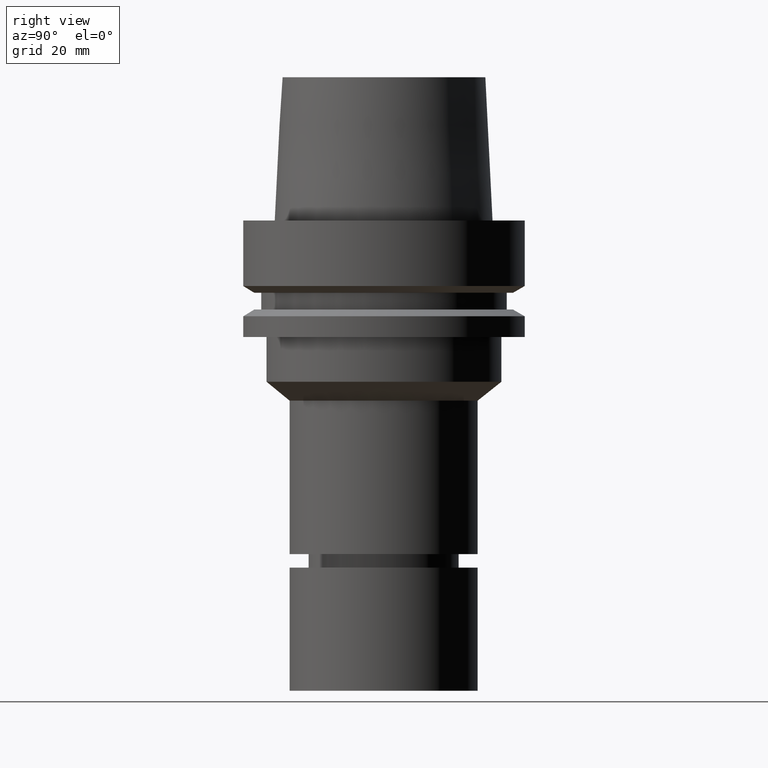
[diagram: clean part render]
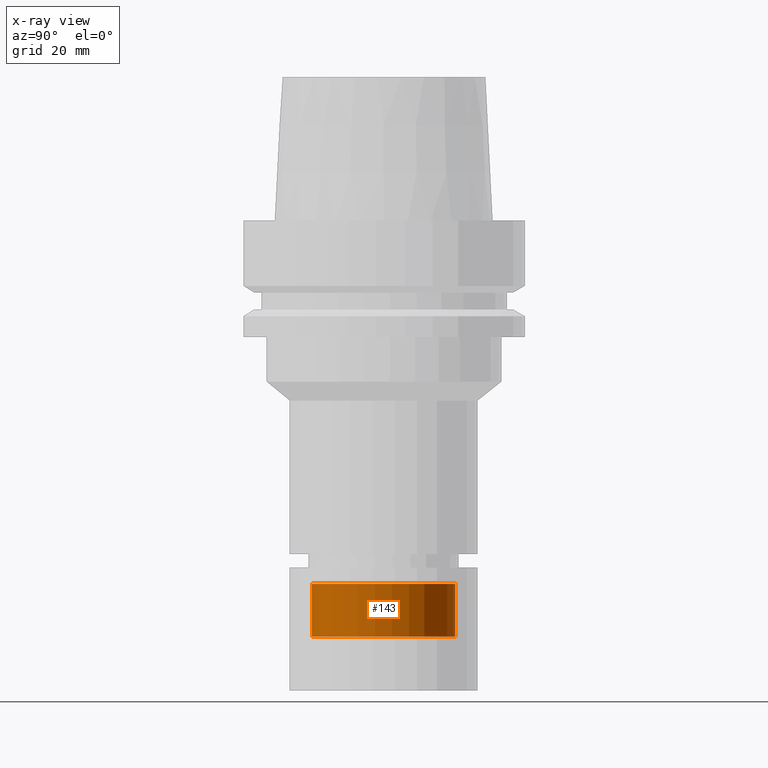
[diagram: x-ray — body ghosted, one internal face saturated and labeled with its STEP entity id]
A machine part, right view, then the same camera in x-ray: the body is ghosted and one INTERNAL B-rep face — a face not visible from any outside direction — is saturated and labeled: STEP entity #143.
In plain terms, the highlighted cylindrical surface (bore or boss wall) has radius 16 mm, axis along (-0, -0, 1).
Its self-contained STEP definition (entity closure, byte-faithful):
#81=EDGE_CURVE('Unnamed[1]',#218,#218,#219,.T.);
#143=ADVANCED_FACE('Unnamed[1]',(#315,#316),#317,.T.);
#180=EDGE_CURVE('Unnamed[1]',#370,#370,#371,.T.);
#218=VERTEX_POINT('',#411);
#219=CIRCLE('',#412,16.0);
#315=FACE_BOUND('',#530,.T.);
#316=FACE_BOUND('',#531,.T.);
#317=CYLINDRICAL_SURFACE('',#532,16.0);
#370=VERTEX_POINT('',#599);
#371=CIRCLE('',#600,16.0);
#411=CARTESIAN_POINT('',(4.96785797576917E-015,16.0,-81.131277674967));
#412=AXIS2_PLACEMENT_3D('',#633,#634,#635);
#530=EDGE_LOOP('',(#742));
#531=EDGE_LOOP('',(#743));
#532=AXIS2_PLACEMENT_3D('',#744,#745,#746);
#599=CARTESIAN_POINT('',(5.68816255169872E-015,16.0,-92.8947441116744));
#600=AXIS2_PLACEMENT_3D('',#802,#803,#804);
#633=CARTESIAN_POINT('',(4.96785797576917E-015,9.93571595153834E-015,-81.131277674967));
#634=DIRECTION('',(-6.12323399573677E-017,-1.22464679914735E-016,1.0));
#635=DIRECTION('',(-1.23259516440783E-032,1.0,1.22464679914735E-016));
#742=ORIENTED_EDGE('',*,*,#81,.F.);
#743=ORIENTED_EDGE('',*,*,#180,.T.);
#744=CARTESIAN_POINT('',(5.32801026373395E-015,1.06560205274679E-014,-87.0130108933207));
#745=DIRECTION('',(-6.12323399573677E-017,-1.22464679914735E-016,1.0));
#746=DIRECTION('',(-1.23259516440783E-032,1.0,1.22464679914735E-016));
#802=CARTESIAN_POINT('',(5.68816255169872E-015,1.13763251033974E-014,-92.8947441116744));
#803=DIRECTION('',(-6.12323399573677E-017,-1.22464679914735E-016,1.0));
#804=DIRECTION('',(-1.23259516440783E-032,1.0,1.22464679914735E-016));